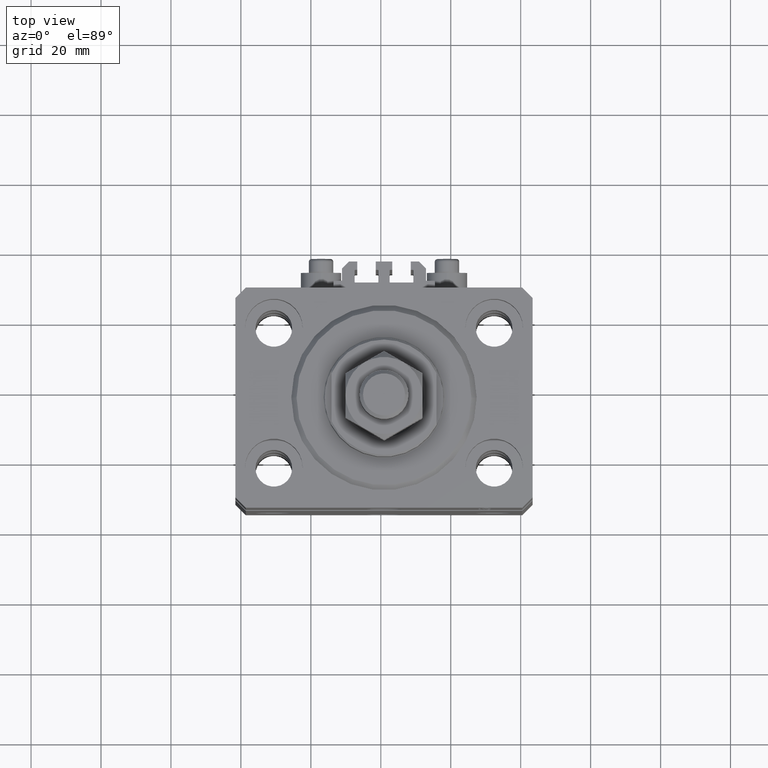
[diagram: clean part render]
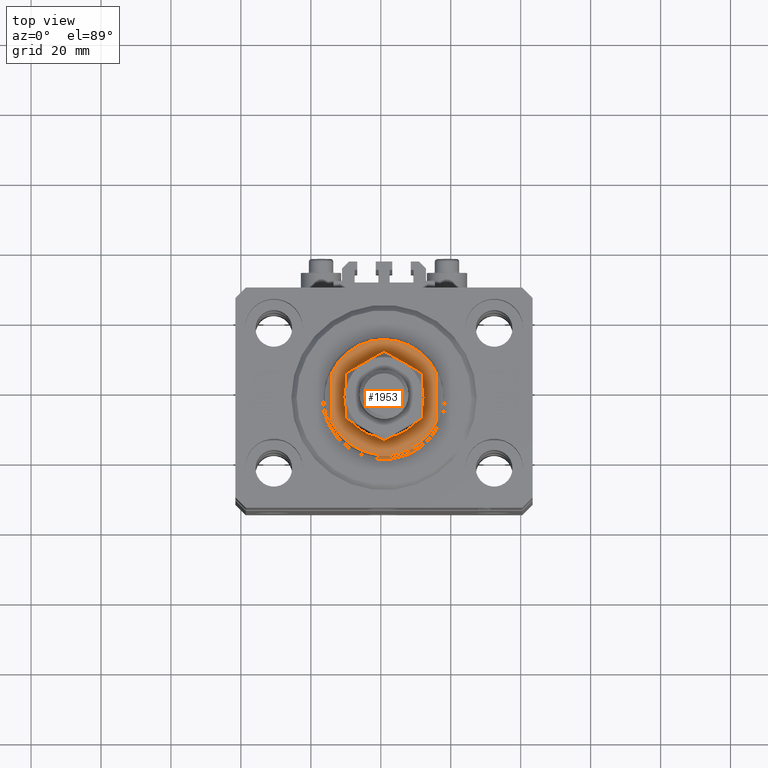
[diagram: same view with one face highlighted and labeled with its STEP entity id]
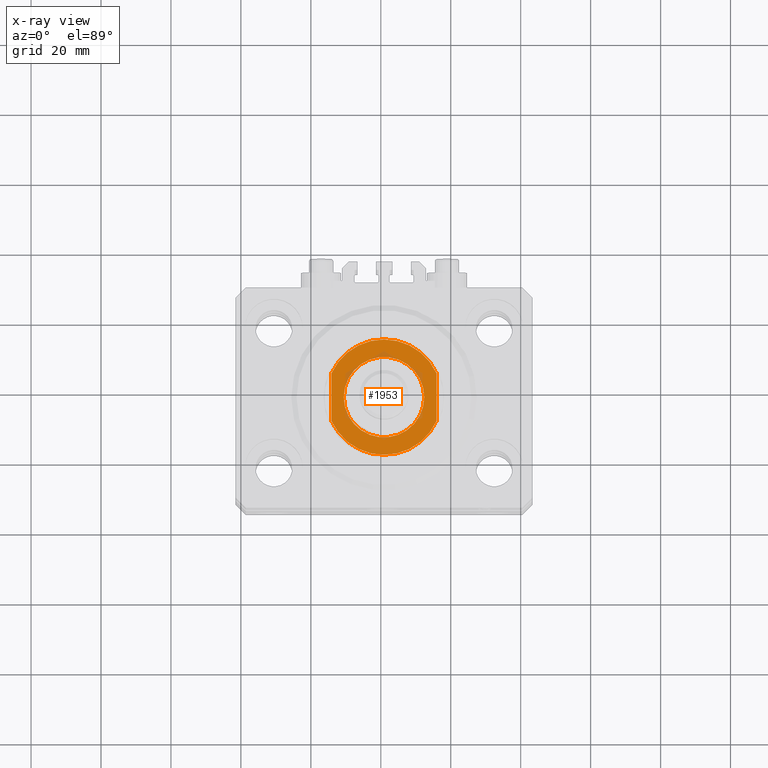
[diagram: x-ray of the same camera — body ghosted, the highlighted face saturated]
A machine part, top view. The second image highlights one B-rep face of the part: STEP entity #1953.
The next image is the same camera in x-ray: the body ghosted, the highlighted face saturated — about 5% of this face is hidden behind the body in this view.
In plain terms, the highlighted planar face has unit normal (0, 0, 1).
Its self-contained STEP definition (entity closure, byte-faithful):
#672 = EDGE_CURVE ( 'NONE', #31862, #23243, #27300, .T. ) ;
#780 = EDGE_CURVE ( 'NONE', #25701, #13515, #35352, .T. ) ;
#1940 = CARTESIAN_POINT ( 'NONE',  ( -14.99999999999999645, -6.873863542433817031, -7.000000000000000000 ) ) ;
#1953 = ADVANCED_FACE ( 'NONE', ( #10252, #6443 ), #6689, .T. ) ;
#3176 = ORIENTED_EDGE ( 'NONE', *, *, #15407, .T. ) ;
#3240 = CARTESIAN_POINT ( 'NONE',  ( 0.000000000000000000, 0.000000000000000000, -7.000000000000000000 ) ) ;
#3452 = VECTOR ( 'NONE', #30709, 1000.000000000000000 ) ;
#5277 = DIRECTION ( 'NONE',  ( 0.000000000000000000, 0.000000000000000000, -1.000000000000000000 ) ) ;
#5282 = DIRECTION ( 'NONE',  ( -1.000000000000000000, 0.000000000000000000, 0.000000000000000000 ) ) ;
#6443 = FACE_OUTER_BOUND ( 'NONE', #22547, .T. ) ;
#6689 = PLANE ( 'NONE',  #23256 ) ;
#6794 = DIRECTION ( 'NONE',  ( 0.000000000000000000, 0.000000000000000000, -1.000000000000000000 ) ) ;
#7509 = DIRECTION ( 'NONE',  ( -0.000000000000000000, -1.000000000000000000, -0.000000000000000000 ) ) ;
#10252 = FACE_BOUND ( 'NONE', #24278, .T. ) ;
#11329 = CARTESIAN_POINT ( 'NONE',  ( 0.000000000000000000, 0.000000000000000000, -7.000000000000000000 ) ) ;
#11899 = LINE ( 'NONE', #31197, #3452 ) ;
#12619 = ORIENTED_EDGE ( 'NONE', *, *, #25897, .T. ) ;
#13515 = VERTEX_POINT ( 'NONE', #31973 ) ;
#15407 = EDGE_CURVE ( 'NONE', #31862, #22125, #23623, .T. ) ;
#18386 = DIRECTION ( 'NONE',  ( 0.000000000000000000, 0.000000000000000000, -1.000000000000000000 ) ) ;
#19623 = ORIENTED_EDGE ( 'NONE', *, *, #40490, .T. ) ;
#21197 = AXIS2_PLACEMENT_3D ( 'NONE', #35494, #5277, #48865 ) ;
#22125 = VERTEX_POINT ( 'NONE', #24270 ) ;
#22184 = CARTESIAN_POINT ( 'NONE',  ( 0.000000000000000000, 0.000000000000000000, -7.000000000000000000 ) ) ;
#22547 = EDGE_LOOP ( 'NONE', ( #3176, #19623, #12619, #23579 ) ) ;
#23243 = VERTEX_POINT ( 'NONE', #1940 ) ;
#23256 = AXIS2_PLACEMENT_3D ( 'NONE', #22184, #18386, #33849 ) ;
#23579 = ORIENTED_EDGE ( 'NONE', *, *, #672, .F. ) ;
#23623 = CIRCLE ( 'NONE', #21197, 16.50000000000002132 ) ;
#24270 = CARTESIAN_POINT ( 'NONE',  ( 14.99999999999999645, 6.873863542433817031, -7.000000000000000000 ) ) ;
#24278 = EDGE_LOOP ( 'NONE', ( #26700, #32135 ) ) ;
#24606 = CARTESIAN_POINT ( 'NONE',  ( 0.000000000000000000, 0.000000000000000000, -7.000000000000000000 ) ) ;
#25701 = VERTEX_POINT ( 'NONE', #46690 ) ;
#25897 = EDGE_CURVE ( 'NONE', #42220, #23243, #30633, .T. ) ;
#26700 = ORIENTED_EDGE ( 'NONE', *, *, #780, .T. ) ;
#27300 = LINE ( 'NONE', #31112, #34511 ) ;
#27351 = AXIS2_PLACEMENT_3D ( 'NONE', #3240, #6794, #33964 ) ;
#30633 = CIRCLE ( 'NONE', #27351, 16.50000000000002132 ) ;
#30709 = DIRECTION ( 'NONE',  ( 0.000000000000000000, -1.000000000000000000, -0.000000000000000000 ) ) ;
#31112 = CARTESIAN_POINT ( 'NONE',  ( -15.00000000000000000, -42.42640687119285303, -7.000000000000000000 ) ) ;
#31197 = CARTESIAN_POINT ( 'NONE',  ( 15.00000000000000000, -42.42640687119285303, -7.000000000000000000 ) ) ;
#31862 = VERTEX_POINT ( 'NONE', #40301 ) ;
#31920 = EDGE_CURVE ( 'NONE', #13515, #25701, #49348, .T. ) ;
#31973 = CARTESIAN_POINT ( 'NONE',  ( 11.50000000000001776, 1.408343819019458543E-15, -7.000000000000000000 ) ) ;
#32135 = ORIENTED_EDGE ( 'NONE', *, *, #31920, .T. ) ;
#33849 = DIRECTION ( 'NONE',  ( -1.000000000000000000, 0.000000000000000000, -0.000000000000000000 ) ) ;
#33964 = DIRECTION ( 'NONE',  ( -1.000000000000000000, 0.000000000000000000, 0.000000000000000000 ) ) ;
#34511 = VECTOR ( 'NONE', #7509, 1000.000000000000000 ) ;
#35352 = CIRCLE ( 'NONE', #39412, 11.50000000000001776 ) ;
#35494 = CARTESIAN_POINT ( 'NONE',  ( 0.000000000000000000, 0.000000000000000000, -7.000000000000000000 ) ) ;
#39412 = AXIS2_PLACEMENT_3D ( 'NONE', #11329, #39459, #43027 ) ;
#39459 = DIRECTION ( 'NONE',  ( -0.000000000000000000, -0.000000000000000000, 1.000000000000000000 ) ) ;
#39592 = AXIS2_PLACEMENT_3D ( 'NONE', #24606, #40055, #5282 ) ;
#40055 = DIRECTION ( 'NONE',  ( -0.000000000000000000, -0.000000000000000000, 1.000000000000000000 ) ) ;
#40301 = CARTESIAN_POINT ( 'NONE',  ( -14.99999999999999645, 6.873863542433817031, -7.000000000000000000 ) ) ;
#40490 = EDGE_CURVE ( 'NONE', #22125, #42220, #11899, .T. ) ;
#42220 = VERTEX_POINT ( 'NONE', #47269 ) ;
#43027 = DIRECTION ( 'NONE',  ( -1.000000000000000000, 0.000000000000000000, 0.000000000000000000 ) ) ;
#46690 = CARTESIAN_POINT ( 'NONE',  ( -11.50000000000001776, 0.000000000000000000, -7.000000000000000000 ) ) ;
#47269 = CARTESIAN_POINT ( 'NONE',  ( 14.99999999999999645, -6.873863542433817031, -7.000000000000000000 ) ) ;
#48865 = DIRECTION ( 'NONE',  ( -1.000000000000000000, 0.000000000000000000, 0.000000000000000000 ) ) ;
#49348 = CIRCLE ( 'NONE', #39592, 11.50000000000001776 ) ;